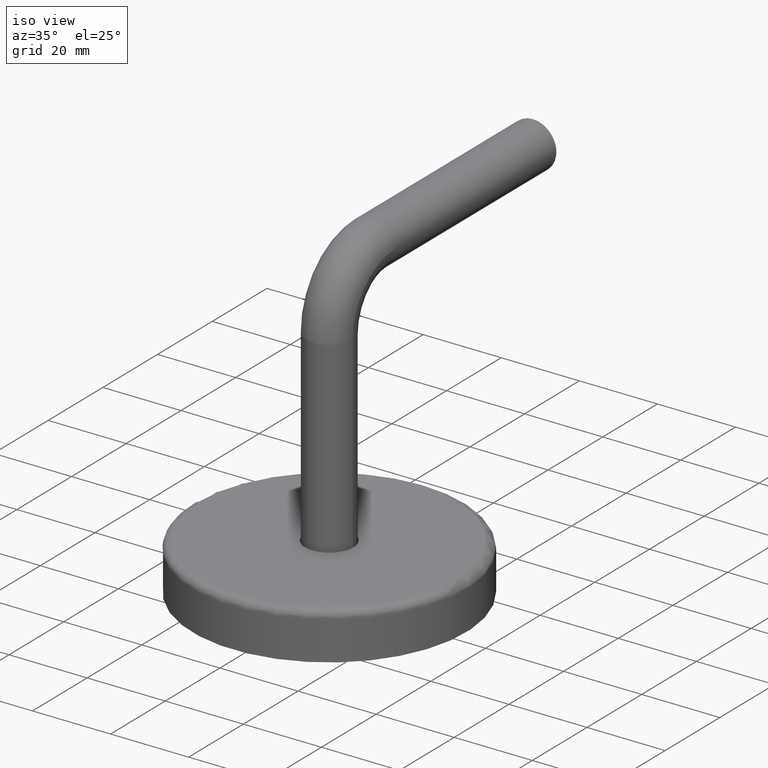
[diagram: clean part render]
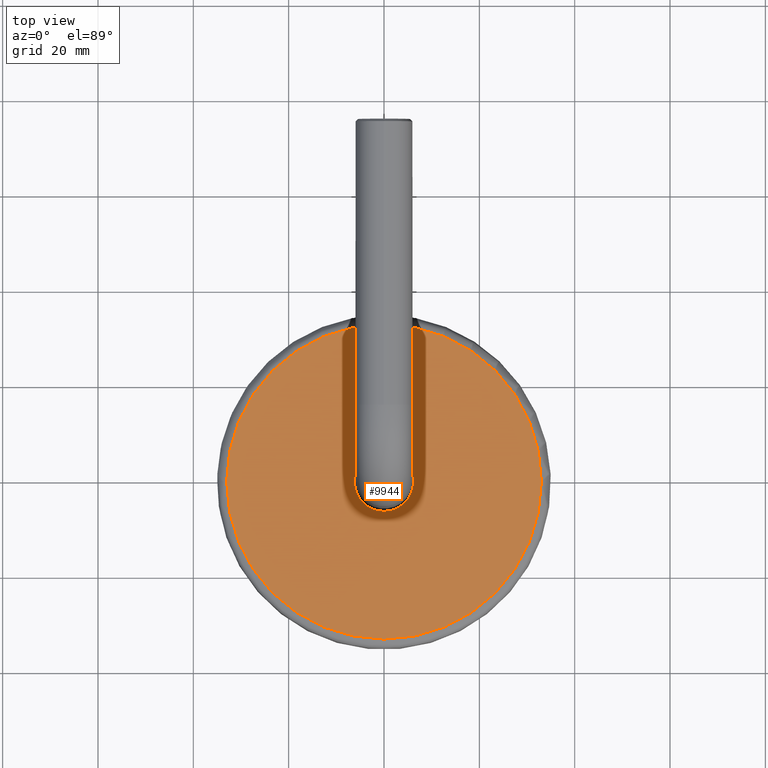
[diagram: tour spotlight — one face highlighted and labeled with its STEP entity id]
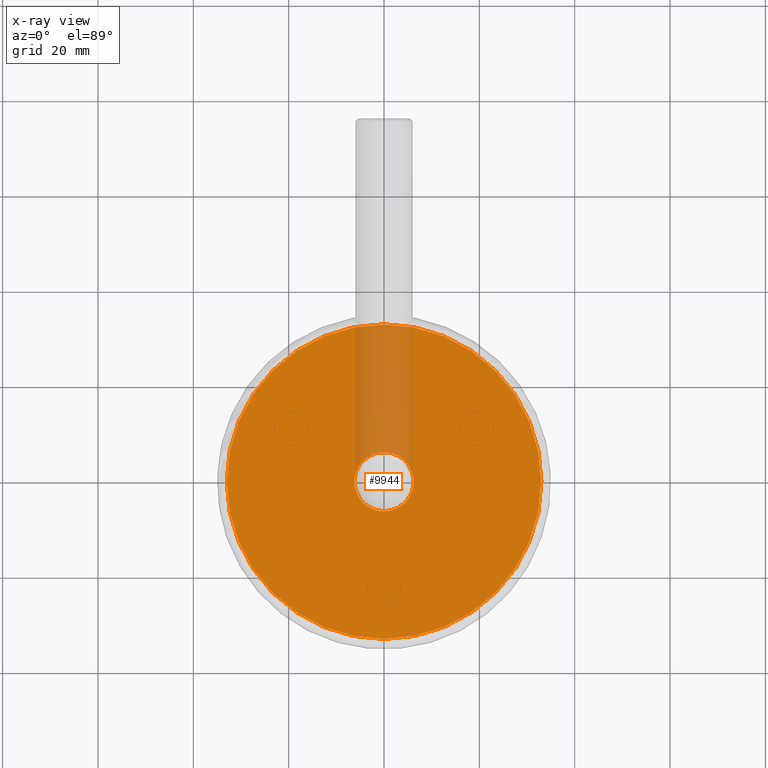
[diagram: x-ray of the same camera — body ghosted, this tour face saturated]
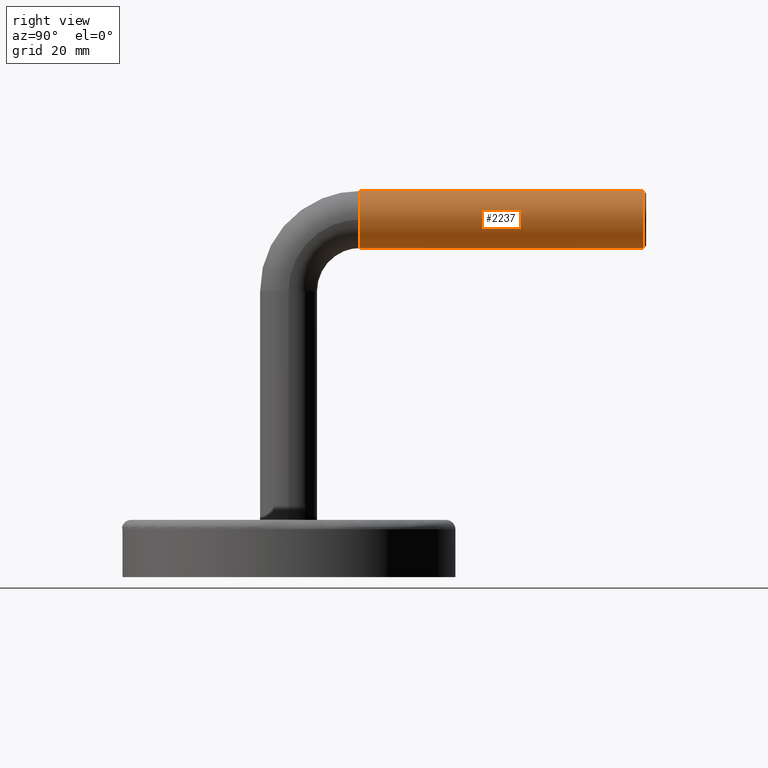
[diagram: tour spotlight — one face highlighted and labeled with its STEP entity id]
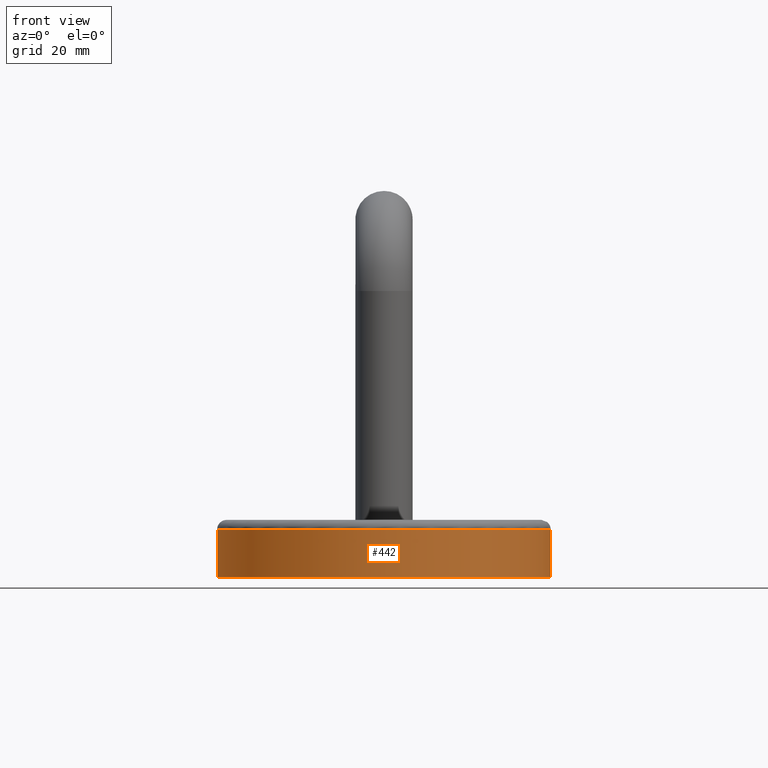
[diagram: tour spotlight — one face highlighted and labeled with its STEP entity id]
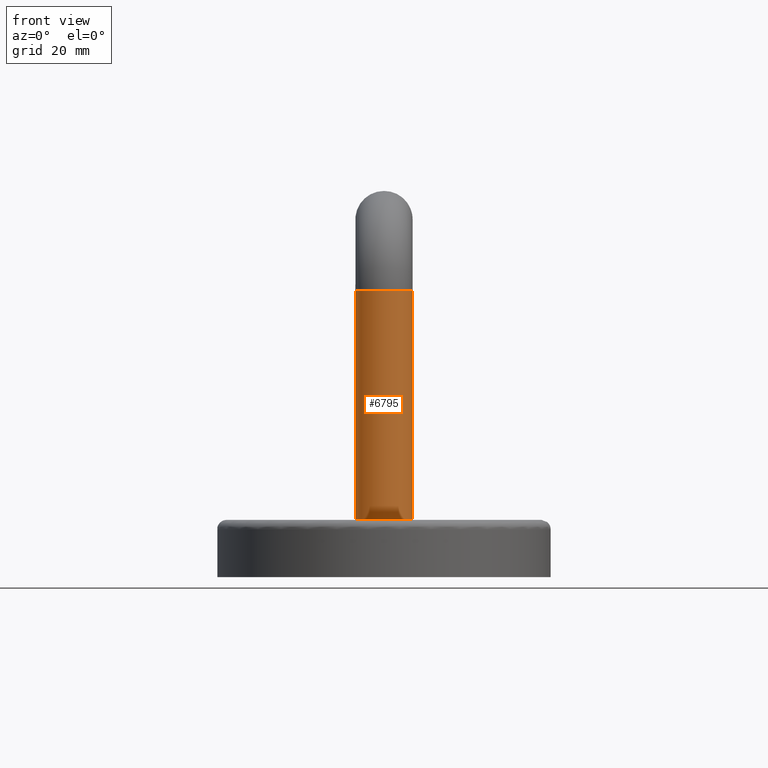
[diagram: tour spotlight — one face highlighted and labeled with its STEP entity id]
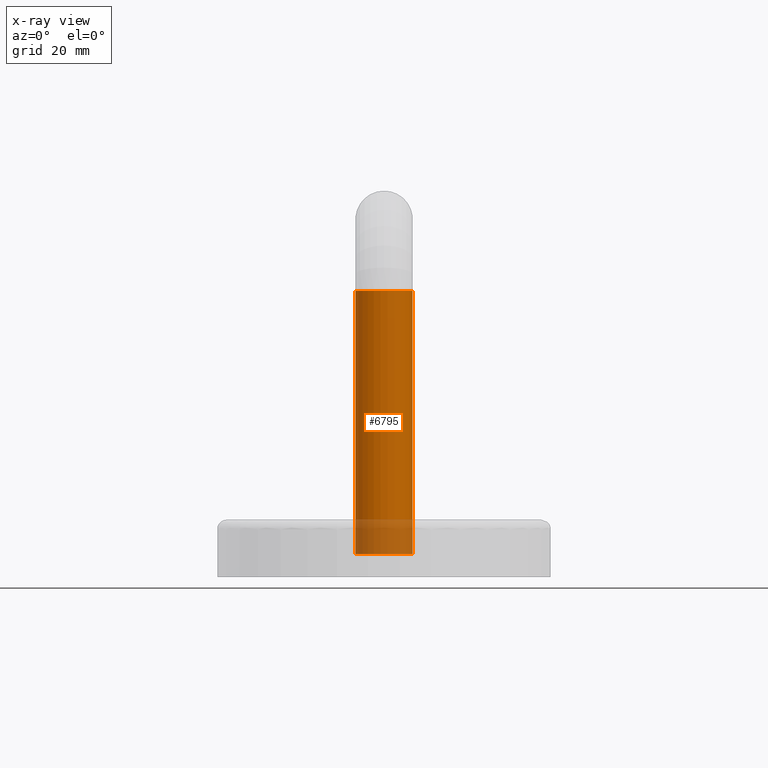
[diagram: x-ray of the same camera — body ghosted, this tour face saturated]
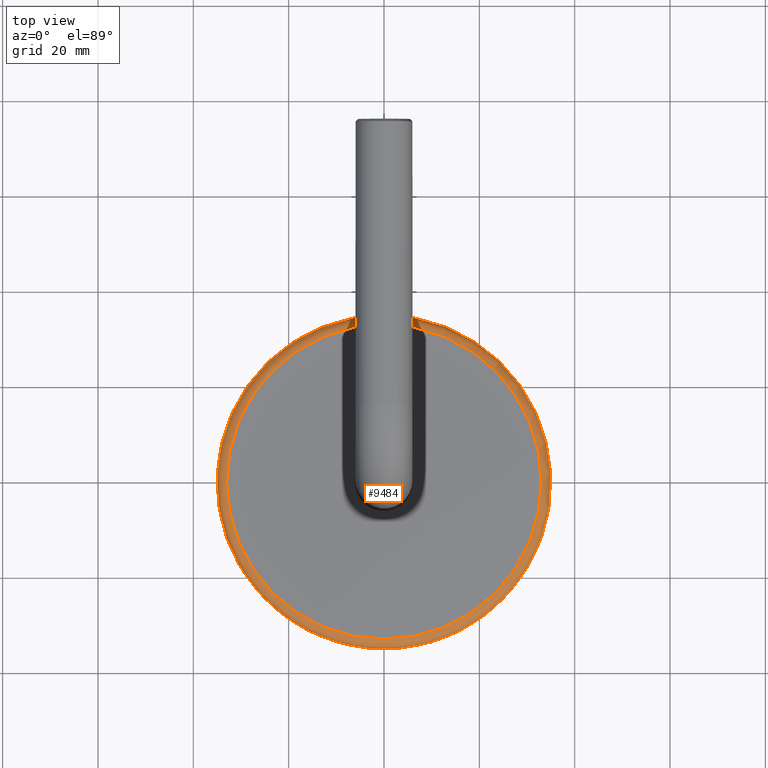
[diagram: tour spotlight — one face highlighted and labeled with its STEP entity id]
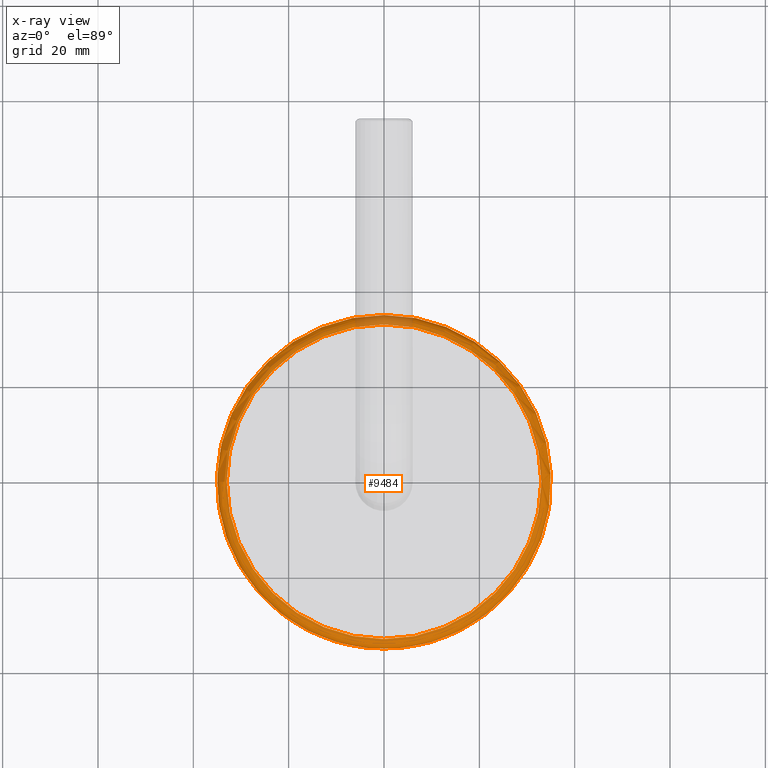
[diagram: x-ray of the same camera — body ghosted, this tour face saturated]
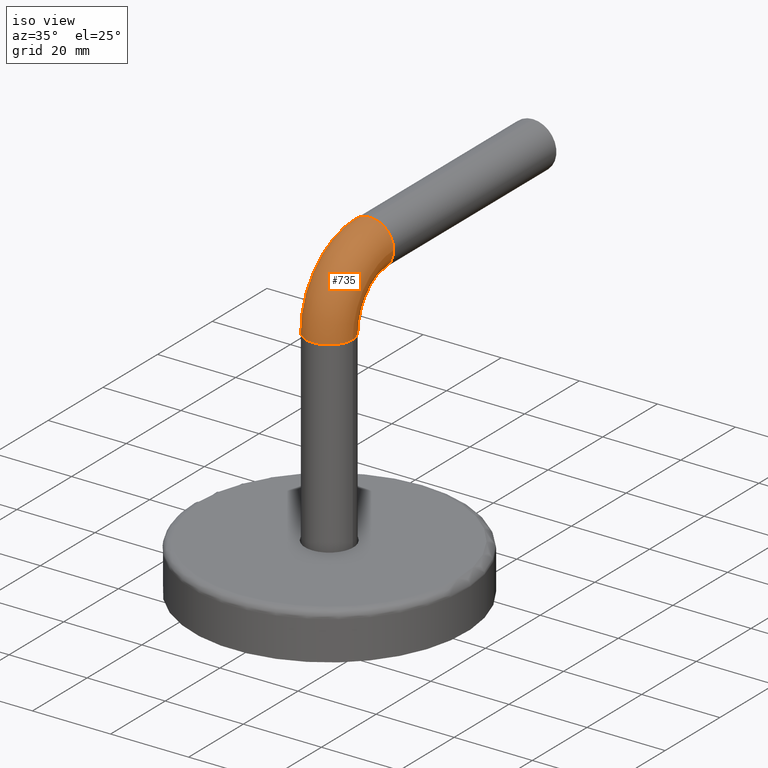
[diagram: tour spotlight — one face highlighted and labeled with its STEP entity id]
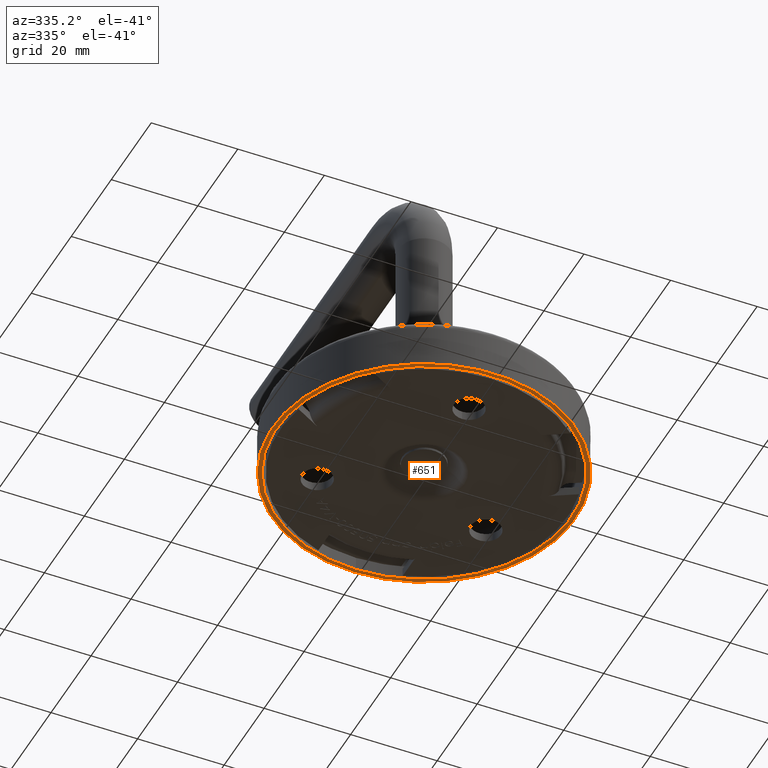
[diagram: tour spotlight — one face highlighted and labeled with its STEP entity id]
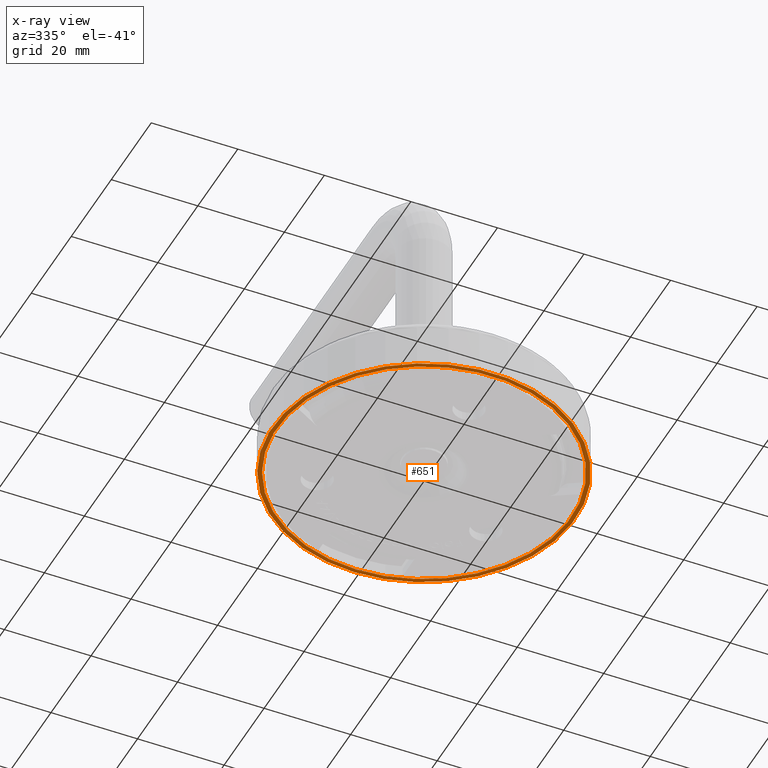
[diagram: x-ray of the same camera — body ghosted, this tour face saturated]
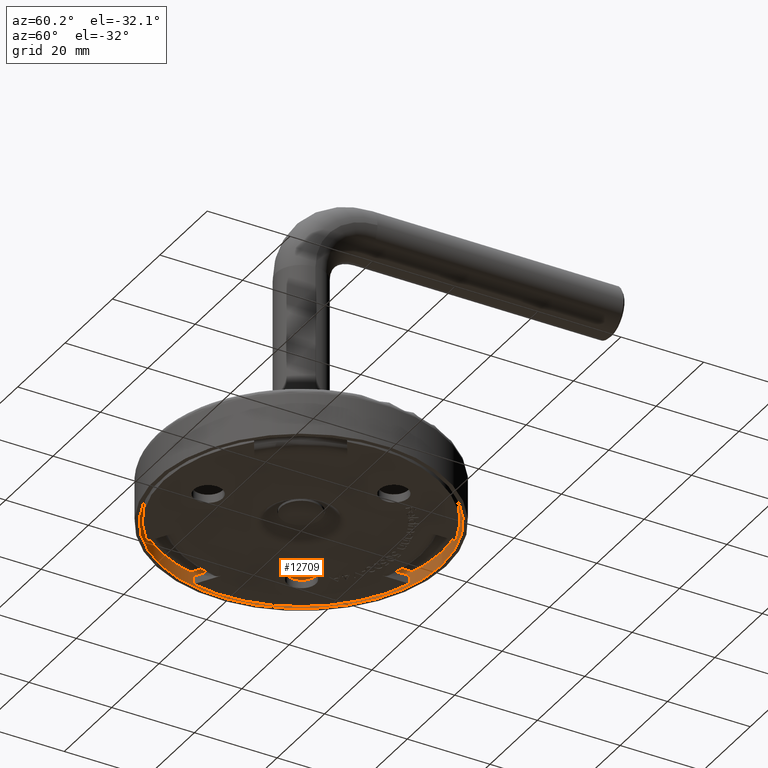
[diagram: tour spotlight — one face highlighted and labeled with its STEP entity id]
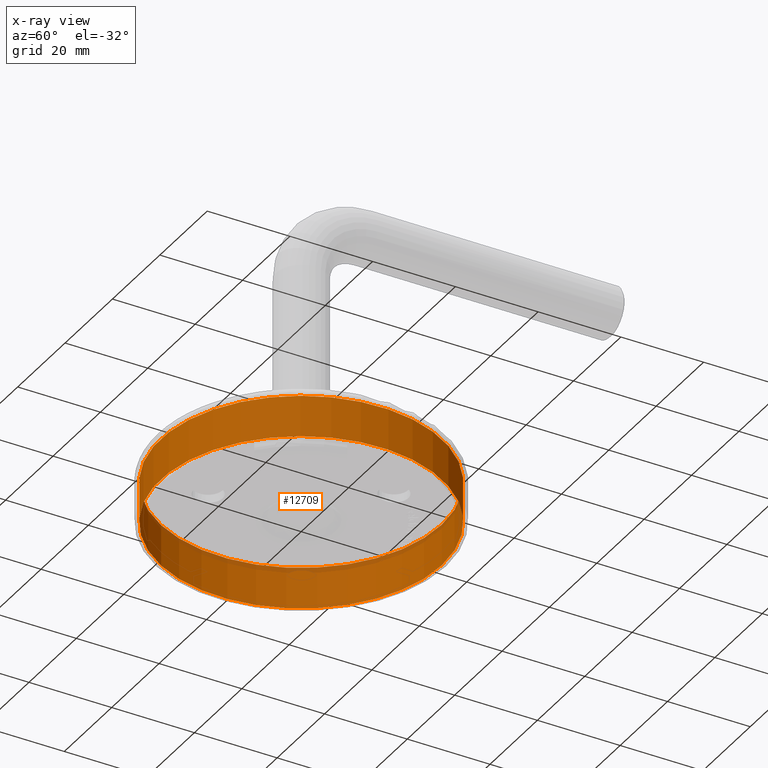
[diagram: x-ray of the same camera — body ghosted, this tour face saturated]
A machine part: a face-by-face anatomy tour. The part has 279 B-rep faces; the first image is the clean iso view, then the 8 largest visible faces are spotlighted one at a time (largest first), each with its STEP entity span.

Face 1 — top view, entity #9944. An x-ray twin of the same camera follows (body ghosted, this face saturated) — the face is partly hidden behind the body. In plain terms, the highlighted planar face has unit normal (0, 0, -1).
Definition (entity closure, byte-faithful):
#646 = CARTESIAN_POINT ( 'NONE',  ( 0.0000000000000000000, -1.469576158976824500E-015, 12.00000000000000200 ) ) ;
#659 = AXIS2_PLACEMENT_3D ( 'NONE', #646, #12127, #9775 ) ;
#2349 = CARTESIAN_POINT ( 'NONE',  ( 0.0000000000000000000, 33.00000000000000000, 12.00000000000000900 ) ) ;
#2466 = CARTESIAN_POINT ( 'NONE',  ( 0.0000000000000000000, -1.469576158976824700E-015, 12.00000000000000500 ) ) ;
#2667 = DIRECTION ( 'NONE',  ( -0.0000000000000000000, 1.224646799147353500E-016, -1.000000000000000000 ) ) ;
#4176 = EDGE_CURVE ( 'NONE', #12039, #12039, #6505, .T. ) ;
#6301 = CIRCLE ( 'NONE', #659, 6.200000000000000200 ) ;
#6365 = EDGE_CURVE ( 'NONE', #8103, #8103, #6301, .T. ) ;
#6505 = CIRCLE ( 'NONE', #9153, 33.00000000000000000 ) ;
#6561 = FACE_OUTER_BOUND ( 'NONE', #12147, .T. ) ;
#7080 = AXIS2_PLACEMENT_3D ( 'NONE', #9919, #13558, #7828 ) ;
#7510 = ORIENTED_EDGE ( 'NONE', *, *, #4176, .F. ) ;
#7828 = DIRECTION ( 'NONE',  ( 0.0000000000000000000, 1.000000000000000000, 1.224646799147353500E-016 ) ) ;
#8103 = VERTEX_POINT ( 'NONE', #9170 ) ;
#9153 = AXIS2_PLACEMENT_3D ( 'NONE', #2466, #2667, #12984 ) ;
#9170 = CARTESIAN_POINT ( 'NONE',  ( 0.0000000000000000000, 6.199999999999998400, 12.00000000000000200 ) ) ;
#9775 = DIRECTION ( 'NONE',  ( 0.0000000000000000000, 1.000000000000000000, 0.0000000000000000000 ) ) ;
#9919 = CARTESIAN_POINT ( 'NONE',  ( 0.0000000000000000000, -6.200000000000002000, 12.00000000000000400 ) ) ;
#9944 = ADVANCED_FACE ( 'NONE', ( #6561, #14601 ), #14702, .F. ) ;
#10029 = EDGE_LOOP ( 'NONE', ( #13106 ) ) ;
#12039 = VERTEX_POINT ( 'NONE', #2349 ) ;
#12127 = DIRECTION ( 'NONE',  ( -0.0000000000000000000, 1.224646799147353500E-016, -1.000000000000000000 ) ) ;
#12147 = EDGE_LOOP ( 'NONE', ( #7510 ) ) ;
#12984 = DIRECTION ( 'NONE',  ( 0.0000000000000000000, 1.000000000000000000, 1.051347561198065000E-016 ) ) ;
#13106 = ORIENTED_EDGE ( 'NONE', *, *, #6365, .T. ) ;
#13558 = DIRECTION ( 'NONE',  ( -0.0000000000000000000, 1.224646799147353500E-016, -1.000000000000000000 ) ) ;
#14601 = FACE_BOUND ( 'NONE', #10029, .T. ) ;
#14702 = PLANE ( 'NONE',  #7080 ) ;

Face 2 — right view, entity #2237. In plain terms, the highlighted cylindrical surface (bore or boss wall) has radius 6 mm, axis along (0, 1, -0).
Definition (entity closure, byte-faithful):
#73 = ORIENTED_EDGE ( 'NONE', *, *, #14309, .T. ) ;
#312 = DIRECTION ( 'NONE',  ( 0.0000000000000000000, 1.000000000000000000, -2.312964634635743400E-016 ) ) ;
#765 = AXIS2_PLACEMENT_3D ( 'NONE', #4829, #1451, #4879 ) ;
#1252 = ORIENTED_EDGE ( 'NONE', *, *, #8370, .T. ) ;
#1451 = DIRECTION ( 'NONE',  ( 0.0000000000000000000, 1.000000000000000000, 6.123233995736766000E-017 ) ) ;
#1569 = DIRECTION ( 'NONE',  ( 0.0000000000000000000, -1.000000000000000000, 0.0000000000000000000 ) ) ;
#2237 = ADVANCED_FACE ( 'NONE', ( #12980, #13693 ), #8860, .T. ) ;
#2442 = CARTESIAN_POINT ( 'NONE',  ( 0.0000000000000000000, 74.50000000000001400, 78.69999999999998900 ) ) ;
#3423 = EDGE_LOOP ( 'NONE', ( #73 ) ) ;
#3641 = VERTEX_POINT ( 'NONE', #9218 ) ;
#4327 = AXIS2_PLACEMENT_3D ( 'NONE', #12881, #1569, #4888 ) ;
#4829 = CARTESIAN_POINT ( 'NONE',  ( 0.0000000000000000000, 14.99999999999999300, 72.70000000000000300 ) ) ;
#4879 = DIRECTION ( 'NONE',  ( 1.000000000000000000, 0.0000000000000000000, 0.0000000000000000000 ) ) ;
#4888 = DIRECTION ( 'NONE',  ( 0.0000000000000000000, 0.0000000000000000000, 1.000000000000000000 ) ) ;
#7601 = CIRCLE ( 'NONE', #4327, 6.000000000000005300 ) ;
#8370 = EDGE_CURVE ( 'NONE', #3641, #3641, #11591, .T. ) ;
#8860 = CYLINDRICAL_SURFACE ( 'NONE', #12014, 6.000000000000005300 ) ;
#9218 = CARTESIAN_POINT ( 'NONE',  ( 6.000000000000000900, 14.99999999999999300, 72.70000000000000300 ) ) ;
#9387 = CARTESIAN_POINT ( 'NONE',  ( 0.0000000000000000000, 14.99999999999999300, 72.70000000000000300 ) ) ;
#9431 = DIRECTION ( 'NONE',  ( 0.0000000000000000000, 2.891205793294675900E-016, 1.000000000000000000 ) ) ;
#11477 = EDGE_LOOP ( 'NONE', ( #1252 ) ) ;
#11591 = CIRCLE ( 'NONE', #765, 6.000000000000000900 ) ;
#12014 = AXIS2_PLACEMENT_3D ( 'NONE', #9387, #312, #9431 ) ;
#12881 = CARTESIAN_POINT ( 'NONE',  ( 0.0000000000000000000, 74.50000000000001400, 72.69999999999998900 ) ) ;
#12980 = FACE_OUTER_BOUND ( 'NONE', #3423, .T. ) ;
#13693 = FACE_OUTER_BOUND ( 'NONE', #11477, .T. ) ;
#14309 = EDGE_CURVE ( 'NONE', #14516, #14516, #7601, .T. ) ;
#14516 = VERTEX_POINT ( 'NONE', #2442 ) ;

Face 3 — front view, entity #442. In plain terms, the highlighted cylindrical surface (bore or boss wall) has radius 35 mm, axis along (0, 0, -1).
Definition (entity closure, byte-faithful):
#442 = ADVANCED_FACE ( 'NONE', ( #1696, #443 ), #14535, .T. ) ;
#443 = FACE_OUTER_BOUND ( 'NONE', #10043, .T. ) ;
#772 = VERTEX_POINT ( 'NONE', #3539 ) ;
#1696 = FACE_OUTER_BOUND ( 'NONE', #10807, .T. ) ;
#2399 = CARTESIAN_POINT ( 'NONE',  ( 0.0000000000000000000, 35.00000000000000000, 8.572527594031474600E-015 ) ) ;
#2558 = DIRECTION ( 'NONE',  ( 0.0000000000000000000, 1.000000000000000000, 1.224646799147353500E-016 ) ) ;
#2771 = CARTESIAN_POINT ( 'NONE',  ( 0.0000000000000000000, -1.224646799147354000E-015, 10.00000000000000400 ) ) ;
#3258 = CARTESIAN_POINT ( 'NONE',  ( 0.0000000000000000000, 0.0000000000000000000, 0.0000000000000000000 ) ) ;
#3539 = CARTESIAN_POINT ( 'NONE',  ( 0.0000000000000000000, 35.00000000000000000, 10.00000000000000700 ) ) ;
#4087 = AXIS2_PLACEMENT_3D ( 'NONE', #3258, #4348, #2558 ) ;
#4348 = DIRECTION ( 'NONE',  ( -0.0000000000000000000, 1.224646799147353500E-016, -1.000000000000000000 ) ) ;
#5131 = DIRECTION ( 'NONE',  ( -0.0000000000000000000, 1.224646799147353500E-016, -1.000000000000000000 ) ) ;
#6472 = DIRECTION ( 'NONE',  ( 0.0000000000000000000, 1.000000000000000000, 1.224646799147353500E-016 ) ) ;
#7030 = ORIENTED_EDGE ( 'NONE', *, *, #14488, .T. ) ;
#8086 = VERTEX_POINT ( 'NONE', #2399 ) ;
#9788 = AXIS2_PLACEMENT_3D ( 'NONE', #12278, #10985, #6472 ) ;
#9875 = AXIS2_PLACEMENT_3D ( 'NONE', #2771, #5131, #13131 ) ;
#9911 = ORIENTED_EDGE ( 'NONE', *, *, #14512, .F. ) ;
#10043 = EDGE_LOOP ( 'NONE', ( #7030 ) ) ;
#10435 = CIRCLE ( 'NONE', #9875, 35.00000000000000000 ) ;
#10807 = EDGE_LOOP ( 'NONE', ( #9911 ) ) ;
#10985 = DIRECTION ( 'NONE',  ( -0.0000000000000000000, 1.224646799147353500E-016, -1.000000000000000000 ) ) ;
#12278 = CARTESIAN_POINT ( 'NONE',  ( 0.0000000000000000000, -5.249159239316504500E-031, 4.286263797015737300E-015 ) ) ;
#13131 = DIRECTION ( 'NONE',  ( 0.0000000000000000000, 1.000000000000000000, 9.912705577010326800E-017 ) ) ;
#14174 = CIRCLE ( 'NONE', #9788, 35.00000000000000000 ) ;
#14488 = EDGE_CURVE ( 'NONE', #772, #772, #10435, .T. ) ;
#14512 = EDGE_CURVE ( 'NONE', #8086, #8086, #14174, .T. ) ;
#14535 = CYLINDRICAL_SURFACE ( 'NONE', #4087, 35.00000000000000000 ) ;

Face 4 — front view, entity #6795. An x-ray twin of the same camera follows (body ghosted, this face saturated) — the face is partly hidden behind the body. In plain terms, the highlighted cylindrical surface (bore or boss wall) has radius 6 mm, axis along (0, 0, -1).
Definition (entity closure, byte-faithful):
#27 = EDGE_LOOP ( 'NONE', ( #9546 ) ) ;
#641 = EDGE_CURVE ( 'NONE', #7028, #7028, #13820, .T. ) ;
#941 = AXIS2_PLACEMENT_3D ( 'NONE', #10551, #7201, #1526 ) ;
#1526 = DIRECTION ( 'NONE',  ( 1.000000000000000000, 0.0000000000000000000, 0.0000000000000000000 ) ) ;
#2739 = CYLINDRICAL_SURFACE ( 'NONE', #13664, 6.000000000000000900 ) ;
#3454 = CARTESIAN_POINT ( 'NONE',  ( 6.000000000000000900, -6.938893903907228400E-015, 57.70000000000000300 ) ) ;
#4084 = CIRCLE ( 'NONE', #12640, 6.000000000000000900 ) ;
#4121 = DIRECTION ( 'NONE',  ( -0.0000000000000000000, 1.202581265841807300E-016, -1.000000000000000000 ) ) ;
#4542 = CARTESIAN_POINT ( 'NONE',  ( 0.0000000000000000000, 0.0000000000000000000, 2.500000000000000400 ) ) ;
#5714 = DIRECTION ( 'NONE',  ( -1.000000000000000000, 0.0000000000000000000, 0.0000000000000000000 ) ) ;
#6795 = ADVANCED_FACE ( 'NONE', ( #8265, #11848 ), #2739, .T. ) ;
#7028 = VERTEX_POINT ( 'NONE', #3454 ) ;
#7201 = DIRECTION ( 'NONE',  ( 0.0000000000000000000, 0.0000000000000000000, 1.000000000000000000 ) ) ;
#7432 = CARTESIAN_POINT ( 'NONE',  ( 0.0000000000000000000, -6.938893903907228400E-015, 57.70000000000000300 ) ) ;
#8026 = CARTESIAN_POINT ( 'NONE',  ( -6.000000000000000900, 0.0000000000000000000, 2.500000000000000400 ) ) ;
#8265 = FACE_OUTER_BOUND ( 'NONE', #14505, .T. ) ;
#8411 = ORIENTED_EDGE ( 'NONE', *, *, #641, .F. ) ;
#9546 = ORIENTED_EDGE ( 'NONE', *, *, #9649, .F. ) ;
#9649 = EDGE_CURVE ( 'NONE', #11313, #11313, #4084, .T. ) ;
#10551 = CARTESIAN_POINT ( 'NONE',  ( 0.0000000000000000000, -6.938893903907228400E-015, 57.70000000000000300 ) ) ;
#11053 = DIRECTION ( 'NONE',  ( 0.0000000000000000000, 1.000000000000000000, 0.0000000000000000000 ) ) ;
#11313 = VERTEX_POINT ( 'NONE', #8026 ) ;
#11848 = FACE_OUTER_BOUND ( 'NONE', #27, .T. ) ;
#12587 = DIRECTION ( 'NONE',  ( 0.0000000000000000000, 0.0000000000000000000, -1.000000000000000000 ) ) ;
#12640 = AXIS2_PLACEMENT_3D ( 'NONE', #4542, #12587, #5714 ) ;
#13664 = AXIS2_PLACEMENT_3D ( 'NONE', #7432, #4121, #11053 ) ;
#13820 = CIRCLE ( 'NONE', #941, 6.000000000000000900 ) ;
#14505 = EDGE_LOOP ( 'NONE', ( #8411 ) ) ;

Face 5 — top view, entity #9484. An x-ray twin of the same camera follows (body ghosted, this face saturated) — the face is partly hidden behind the body. In plain terms, the highlighted toroidal blend (fillet) surface has major radius 33 mm and minor (blend) radius 2 mm.
Definition (entity closure, byte-faithful):
#772 = VERTEX_POINT ( 'NONE', #3539 ) ;
#2349 = CARTESIAN_POINT ( 'NONE',  ( 0.0000000000000000000, 33.00000000000000000, 12.00000000000000900 ) ) ;
#2466 = CARTESIAN_POINT ( 'NONE',  ( 0.0000000000000000000, -1.469576158976824700E-015, 12.00000000000000500 ) ) ;
#2667 = DIRECTION ( 'NONE',  ( -0.0000000000000000000, 1.224646799147353500E-016, -1.000000000000000000 ) ) ;
#2771 = CARTESIAN_POINT ( 'NONE',  ( 0.0000000000000000000, -1.224646799147354000E-015, 10.00000000000000400 ) ) ;
#3307 = ORIENTED_EDGE ( 'NONE', *, *, #14488, .F. ) ;
#3539 = CARTESIAN_POINT ( 'NONE',  ( 0.0000000000000000000, 35.00000000000000000, 10.00000000000000700 ) ) ;
#4057 = CARTESIAN_POINT ( 'NONE',  ( 0.0000000000000000000, 0.0000000000000000000, 10.00000000000000400 ) ) ;
#4176 = EDGE_CURVE ( 'NONE', #12039, #12039, #6505, .T. ) ;
#4253 = FACE_OUTER_BOUND ( 'NONE', #7119, .T. ) ;
#5131 = DIRECTION ( 'NONE',  ( -0.0000000000000000000, 1.224646799147353500E-016, -1.000000000000000000 ) ) ;
#6333 = DIRECTION ( 'NONE',  ( 0.0000000000000000000, 1.000000000000000000, 1.224646799147353500E-016 ) ) ;
#6475 = EDGE_LOOP ( 'NONE', ( #3307 ) ) ;
#6505 = CIRCLE ( 'NONE', #9153, 33.00000000000000000 ) ;
#7119 = EDGE_LOOP ( 'NONE', ( #7526 ) ) ;
#7278 = AXIS2_PLACEMENT_3D ( 'NONE', #4057, #8773, #6333 ) ;
#7526 = ORIENTED_EDGE ( 'NONE', *, *, #4176, .T. ) ;
#8773 = DIRECTION ( 'NONE',  ( -0.0000000000000000000, 1.224646799147353500E-016, -1.000000000000000000 ) ) ;
#9074 = TOROIDAL_SURFACE ( 'NONE', #7278, 33.00000000000000000, 2.000000000000001800 ) ;
#9153 = AXIS2_PLACEMENT_3D ( 'NONE', #2466, #2667, #12984 ) ;
#9484 = ADVANCED_FACE ( 'NONE', ( #14075, #4253 ), #9074, .T. ) ;
#9875 = AXIS2_PLACEMENT_3D ( 'NONE', #2771, #5131, #13131 ) ;
#10435 = CIRCLE ( 'NONE', #9875, 35.00000000000000000 ) ;
#12039 = VERTEX_POINT ( 'NONE', #2349 ) ;
#12984 = DIRECTION ( 'NONE',  ( 0.0000000000000000000, 1.000000000000000000, 1.051347561198065000E-016 ) ) ;
#13131 = DIRECTION ( 'NONE',  ( 0.0000000000000000000, 1.000000000000000000, 9.912705577010326800E-017 ) ) ;
#14075 = FACE_OUTER_BOUND ( 'NONE', #6475, .T. ) ;
#14488 = EDGE_CURVE ( 'NONE', #772, #772, #10435, .T. ) ;

Face 6 — iso view, entity #735. In plain terms, the highlighted toroidal blend (fillet) surface has major radius 15 mm and minor (blend) radius 6 mm.
Definition (entity closure, byte-faithful):
#254 = FACE_OUTER_BOUND ( 'NONE', #9510, .T. ) ;
#641 = EDGE_CURVE ( 'NONE', #7028, #7028, #13820, .T. ) ;
#735 = ADVANCED_FACE ( 'NONE', ( #254, #5945 ), #1517, .T. ) ;
#765 = AXIS2_PLACEMENT_3D ( 'NONE', #4829, #1451, #4879 ) ;
#941 = AXIS2_PLACEMENT_3D ( 'NONE', #10551, #7201, #1526 ) ;
#1451 = DIRECTION ( 'NONE',  ( 0.0000000000000000000, 1.000000000000000000, 6.123233995736766000E-017 ) ) ;
#1517 = TOROIDAL_SURFACE ( 'NONE', #14762, 15.00000000000000000, 6.000000000000000900 ) ;
#1526 = DIRECTION ( 'NONE',  ( 1.000000000000000000, 0.0000000000000000000, 0.0000000000000000000 ) ) ;
#2148 = DIRECTION ( 'NONE',  ( -1.000000000000000000, -0.0000000000000000000, 0.0000000000000000000 ) ) ;
#3454 = CARTESIAN_POINT ( 'NONE',  ( 6.000000000000000900, -6.938893903907228400E-015, 57.70000000000000300 ) ) ;
#3641 = VERTEX_POINT ( 'NONE', #9218 ) ;
#4829 = CARTESIAN_POINT ( 'NONE',  ( 0.0000000000000000000, 14.99999999999999300, 72.70000000000000300 ) ) ;
#4879 = DIRECTION ( 'NONE',  ( 1.000000000000000000, 0.0000000000000000000, 0.0000000000000000000 ) ) ;
#5945 = FACE_OUTER_BOUND ( 'NONE', #13977, .T. ) ;
#6046 = ORIENTED_EDGE ( 'NONE', *, *, #8370, .F. ) ;
#6842 = ORIENTED_EDGE ( 'NONE', *, *, #641, .T. ) ;
#7028 = VERTEX_POINT ( 'NONE', #3454 ) ;
#7201 = DIRECTION ( 'NONE',  ( 0.0000000000000000000, 0.0000000000000000000, 1.000000000000000000 ) ) ;
#7939 = CARTESIAN_POINT ( 'NONE',  ( 0.0000000000000000000, 14.99999999999999300, 57.70000000000000300 ) ) ;
#8370 = EDGE_CURVE ( 'NONE', #3641, #3641, #11591, .T. ) ;
#9218 = CARTESIAN_POINT ( 'NONE',  ( 6.000000000000000900, 14.99999999999999300, 72.70000000000000300 ) ) ;
#9510 = EDGE_LOOP ( 'NONE', ( #6842 ) ) ;
#10551 = CARTESIAN_POINT ( 'NONE',  ( 0.0000000000000000000, -6.938893903907228400E-015, 57.70000000000000300 ) ) ;
#11591 = CIRCLE ( 'NONE', #765, 6.000000000000000900 ) ;
#12438 = DIRECTION ( 'NONE',  ( 0.0000000000000000000, 0.0000000000000000000, 1.000000000000000000 ) ) ;
#13820 = CIRCLE ( 'NONE', #941, 6.000000000000000900 ) ;
#13977 = EDGE_LOOP ( 'NONE', ( #6046 ) ) ;
#14762 = AXIS2_PLACEMENT_3D ( 'NONE', #7939, #2148, #12438 ) ;

Face 7 — auxiliary view, entity #651. An x-ray twin of the same camera follows (body ghosted, this face saturated) — the face is partly hidden behind the body. In plain terms, the highlighted planar face has unit normal (0, -0, 1).
Definition (entity closure, byte-faithful):
#224 = PLANE ( 'NONE',  #9441 ) ;
#651 = ADVANCED_FACE ( 'NONE', ( #11507, #12749 ), #224, .F. ) ;
#1472 = EDGE_LOOP ( 'NONE', ( #3037 ) ) ;
#2047 = CARTESIAN_POINT ( 'NONE',  ( 0.0000000000000000000, -5.099183261050318100E-031, 4.163799117101001300E-015 ) ) ;
#2399 = CARTESIAN_POINT ( 'NONE',  ( 0.0000000000000000000, 35.00000000000000000, 8.572527594031474600E-015 ) ) ;
#3037 = ORIENTED_EDGE ( 'NONE', *, *, #14512, .T. ) ;
#3617 = DIRECTION ( 'NONE',  ( 0.0000000000000000000, -1.000000000000000000, -1.224646799147353500E-016 ) ) ;
#3618 = ORIENTED_EDGE ( 'NONE', *, *, #11284, .F. ) ;
#3938 = AXIS2_PLACEMENT_3D ( 'NONE', #2047, #10021, #6211 ) ;
#4642 = EDGE_LOOP ( 'NONE', ( #3618 ) ) ;
#6211 = DIRECTION ( 'NONE',  ( 0.0000000000000000000, 1.000000000000000000, 1.224646799147353500E-016 ) ) ;
#6472 = DIRECTION ( 'NONE',  ( 0.0000000000000000000, 1.000000000000000000, 1.224646799147353500E-016 ) ) ;
#8086 = VERTEX_POINT ( 'NONE', #2399 ) ;
#8343 = CARTESIAN_POINT ( 'NONE',  ( 0.0000000000000000000, -35.00000000000000000, -6.123233995736773400E-017 ) ) ;
#8873 = CIRCLE ( 'NONE', #3938, 34.00000000000000000 ) ;
#9441 = AXIS2_PLACEMENT_3D ( 'NONE', #8343, #10660, #3617 ) ;
#9788 = AXIS2_PLACEMENT_3D ( 'NONE', #12278, #10985, #6472 ) ;
#10021 = DIRECTION ( 'NONE',  ( -0.0000000000000000000, 1.224646799147353500E-016, -1.000000000000000000 ) ) ;
#10660 = DIRECTION ( 'NONE',  ( 0.0000000000000000000, -1.224646799147353500E-016, 1.000000000000000000 ) ) ;
#10985 = DIRECTION ( 'NONE',  ( -0.0000000000000000000, 1.224646799147353500E-016, -1.000000000000000000 ) ) ;
#11284 = EDGE_CURVE ( 'NONE', #14338, #14338, #8873, .T. ) ;
#11507 = FACE_BOUND ( 'NONE', #4642, .T. ) ;
#12278 = CARTESIAN_POINT ( 'NONE',  ( 0.0000000000000000000, -5.249159239316504500E-031, 4.286263797015737300E-015 ) ) ;
#12749 = FACE_OUTER_BOUND ( 'NONE', #1472, .T. ) ;
#13856 = CARTESIAN_POINT ( 'NONE',  ( 0.0000000000000000000, 34.00000000000000000, 8.327598234202002700E-015 ) ) ;
#14174 = CIRCLE ( 'NONE', #9788, 35.00000000000000000 ) ;
#14338 = VERTEX_POINT ( 'NONE', #13856 ) ;
#14512 = EDGE_CURVE ( 'NONE', #8086, #8086, #14174, .T. ) ;

Face 8 — auxiliary view, entity #12709. An x-ray twin of the same camera follows (body ghosted, this face saturated) — the face is partly hidden behind the body. In plain terms, the highlighted cylindrical surface (bore or boss wall) has radius 34 mm, axis along (0, 0, -1).
Definition (entity closure, byte-faithful):
#408 = CARTESIAN_POINT ( 'NONE',  ( 0.0000000000000000000, 0.0000000000000000000, 0.0000000000000000000 ) ) ;
#1274 = CARTESIAN_POINT ( 'NONE',  ( 0.0000000000000000000, -1.224646799147354000E-015, 10.00000000000000400 ) ) ;
#2047 = CARTESIAN_POINT ( 'NONE',  ( 0.0000000000000000000, -5.099183261050318100E-031, 4.163799117101001300E-015 ) ) ;
#2995 = AXIS2_PLACEMENT_3D ( 'NONE', #408, #9479, #3656 ) ;
#3069 = ORIENTED_EDGE ( 'NONE', *, *, #4373, .F. ) ;
#3656 = DIRECTION ( 'NONE',  ( 0.0000000000000000000, 1.000000000000000000, 1.224646799147353500E-016 ) ) ;
#3938 = AXIS2_PLACEMENT_3D ( 'NONE', #2047, #10021, #6211 ) ;
#4373 = EDGE_CURVE ( 'NONE', #11141, #11141, #8122, .T. ) ;
#5915 = CARTESIAN_POINT ( 'NONE',  ( 0.0000000000000000000, 34.00000000000000000, 10.00000000000000700 ) ) ;
#6211 = DIRECTION ( 'NONE',  ( 0.0000000000000000000, 1.000000000000000000, 1.224646799147353500E-016 ) ) ;
#8122 = CIRCLE ( 'NONE', #13270, 34.00000000000000000 ) ;
#8306 = CYLINDRICAL_SURFACE ( 'NONE', #2995, 34.00000000000000000 ) ;
#8797 = EDGE_LOOP ( 'NONE', ( #13619 ) ) ;
#8873 = CIRCLE ( 'NONE', #3938, 34.00000000000000000 ) ;
#9204 = FACE_OUTER_BOUND ( 'NONE', #12858, .T. ) ;
#9479 = DIRECTION ( 'NONE',  ( -0.0000000000000000000, 1.224646799147353500E-016, -1.000000000000000000 ) ) ;
#10021 = DIRECTION ( 'NONE',  ( -0.0000000000000000000, 1.224646799147353500E-016, -1.000000000000000000 ) ) ;
#10419 = DIRECTION ( 'NONE',  ( -0.0000000000000000000, 1.224646799147353500E-016, -1.000000000000000000 ) ) ;
#11141 = VERTEX_POINT ( 'NONE', #5915 ) ;
#11284 = EDGE_CURVE ( 'NONE', #14338, #14338, #8873, .T. ) ;
#12709 = ADVANCED_FACE ( 'NONE', ( #9204, #13138 ), #8306, .F. ) ;
#12858 = EDGE_LOOP ( 'NONE', ( #3069 ) ) ;
#13138 = FACE_OUTER_BOUND ( 'NONE', #8797, .T. ) ;
#13270 = AXIS2_PLACEMENT_3D ( 'NONE', #1274, #10419, #13846 ) ;
#13619 = ORIENTED_EDGE ( 'NONE', *, *, #11284, .T. ) ;
#13846 = DIRECTION ( 'NONE',  ( 0.0000000000000000000, 1.000000000000000000, 1.020425574104004100E-016 ) ) ;
#13856 = CARTESIAN_POINT ( 'NONE',  ( 0.0000000000000000000, 34.00000000000000000, 8.327598234202002700E-015 ) ) ;
#14338 = VERTEX_POINT ( 'NONE', #13856 ) ;